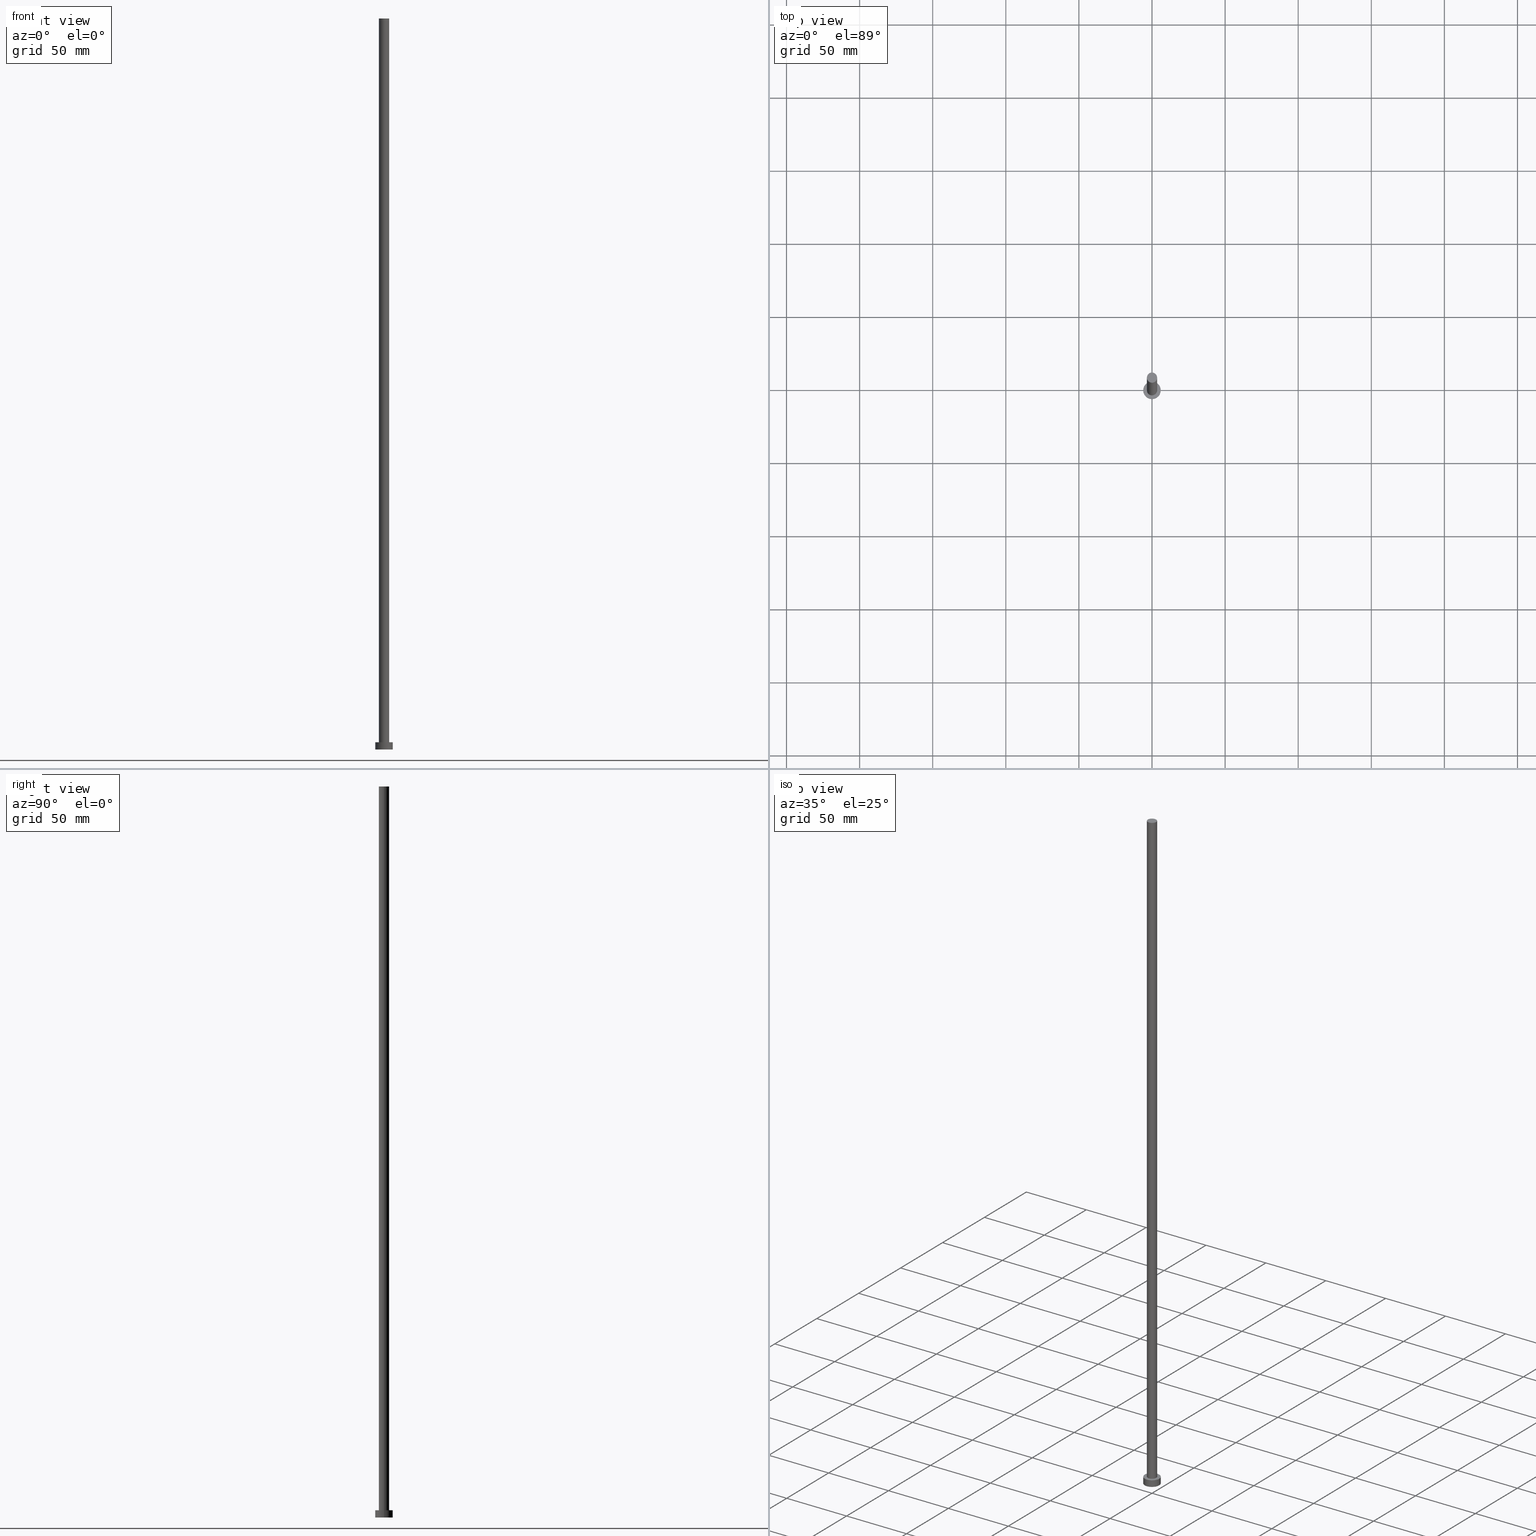
[diagram: canonical four-view strip — front | top / right | iso, engineering-drawing reading convention]
A machine part, canonical four-view strip (front | top / right | iso — engineering-drawing reading convention). The complete STEP part file that produces these views, byte-faithful:
ISO-10303-21;
HEADER;
FILE_DESCRIPTION (( 'STEP AP203' ),
    '1' );
FILE_NAME ('019a.STEP',
    '2023-02-13T13:35:35',
    ( '' ),
    ( '' ),
    'SwSTEP 2.0',
    'SolidWorks 2019',
    '' );
FILE_SCHEMA (( 'CONFIG_CONTROL_DESIGN' ));
ENDSEC;

DATA;
#1 = PERSON_AND_ORGANIZATION ( #200, #69 ) ;
#2 = APPLICATION_PROTOCOL_DEFINITION ( 'international standard', 'config_control_design', 1994, #146 ) ;
#3 = CC_DESIGN_PERSON_AND_ORGANIZATION_ASSIGNMENT ( #64, #21, ( #254 ) ) ;
#4 = ADVANCED_FACE ( 'NONE', ( #136 ), #212, .T. ) ;
#5 = PERSON_AND_ORGANIZATION ( #200, #69 ) ;
#6 = CALENDAR_DATE ( 2023, 13, 2 ) ;
#7 = SECURITY_CLASSIFICATION_LEVEL ( 'unclassified' ) ;
#8 = SHAPE_DEFINITION_REPRESENTATION ( #48, #220 ) ;
#9 = AXIS2_PLACEMENT_3D ( 'NONE', #173, #68, #39 ) ;
#10 = LINE ( 'NONE', #251, #80 ) ;
#11 = FACE_BOUND ( 'NONE', #175, .T. ) ;
#12 = VERTEX_POINT ( 'NONE', #189 ) ;
#13 = AXIS2_PLACEMENT_3D ( 'NONE', #180, #227, #253 ) ;
#14 = EDGE_LOOP ( 'NONE', ( #72, #247 ) ) ;
#15 = CYLINDRICAL_SURFACE ( 'NONE', #191, 3.500000000000000000 ) ;
#16 = DIRECTION ( 'NONE',  ( 0.000000000000000000, 0.000000000000000000, 1.000000000000000000 ) ) ;
#17 = FACE_OUTER_BOUND ( 'NONE', #154, .T. ) ;
#18 = AXIS2_PLACEMENT_3D ( 'NONE', #33, #231, #110 ) ;
#19 = DATE_TIME_ROLE ( 'creation_date' ) ;
#20 = EDGE_CURVE ( 'NONE', #209, #56, #10, .T. ) ;
#21 = PERSON_AND_ORGANIZATION_ROLE ( 'design_owner' ) ;
#22 = CARTESIAN_POINT ( 'NONE',  ( 6.000000000000000888, 7.347880794884120722E-16, 5.000000000000000000 ) ) ;
#23 = CC_DESIGN_DATE_AND_TIME_ASSIGNMENT ( #185, #147, ( #203 ) ) ;
#24 = EDGE_CURVE ( 'NONE', #56, #12, #252, .T. ) ;
#25 = ORIENTED_EDGE ( 'NONE', *, *, #153, .F. ) ;
#26 = COORDINATED_UNIVERSAL_TIME_OFFSET ( 1, 0, .AHEAD. ) ;
#27 = CIRCLE ( 'NONE', #135, 6.000000000000000888 ) ;
#28 = ORIENTED_EDGE ( 'NONE', *, *, #198, .F. ) ;
#29 = CARTESIAN_POINT ( 'NONE',  ( -3.500000000000000000, 0.000000000000000000, 500.0000000000000000 ) ) ;
#30 = EDGE_LOOP ( 'NONE', ( #205, #87, #58, #224 ) ) ;
#31 = DIRECTION ( 'NONE',  ( 0.000000000000000000, 0.000000000000000000, 1.000000000000000000 ) ) ;
#32 = PRODUCT_DEFINITION ( 'NEZN�M�', '', #221, #51 ) ;
#33 = CARTESIAN_POINT ( 'NONE',  ( 0.000000000000000000, 0.000000000000000000, 0.000000000000000000 ) ) ;
#34 = DIRECTION ( 'NONE',  ( 0.000000000000000000, 0.000000000000000000, 1.000000000000000000 ) ) ;
#35 =( GEOMETRIC_REPRESENTATION_CONTEXT ( 3 ) GLOBAL_UNCERTAINTY_ASSIGNED_CONTEXT ( ( #79 ) ) GLOBAL_UNIT_ASSIGNED_CONTEXT ( ( #115, #76, #195 ) ) REPRESENTATION_CONTEXT ( 'NONE', 'WORKASPACE' ) );
#36 = VERTEX_POINT ( 'NONE', #98 ) ;
#37 = CARTESIAN_POINT ( 'NONE',  ( 3.500000000000000000, 4.286263797015736595E-16, 500.0000000000000000 ) ) ;
#38 = CARTESIAN_POINT ( 'NONE',  ( 0.000000000000000000, 0.000000000000000000, 5.000000000000000000 ) ) ;
#39 = DIRECTION ( 'NONE',  ( 1.000000000000000000, 0.000000000000000000, 0.000000000000000000 ) ) ;
#40 = CARTESIAN_POINT ( 'NONE',  ( 6.000000000000000888, 7.347880794884120722E-16, 5.000000000000000000 ) ) ;
#41 = AXIS2_PLACEMENT_3D ( 'NONE', #131, #194, #63 ) ;
#42 = APPLICATION_CONTEXT ( 'configuration controlled 3d designs of mechanical parts and assemblies' ) ;
#43 = ADVANCED_FACE ( 'NONE', ( #235 ), #62, .T. ) ;
#44 = ORIENTED_EDGE ( 'NONE', *, *, #97, .T. ) ;
#45 = PERSON_AND_ORGANIZATION ( #200, #69 ) ;
#46 = LOCAL_TIME ( 14, 35, 35.00000000000000000, #138 ) ;
#47 = CIRCLE ( 'NONE', #9, 6.000000000000000888 ) ;
#48 = PRODUCT_DEFINITION_SHAPE ( 'NONE', 'NONE',  #32 ) ;
#49 = PERSON_AND_ORGANIZATION_ROLE ( 'classification_officer' ) ;
#50 = ADVANCED_FACE ( 'NONE', ( #174 ), #232, .F. ) ;
#51 = DESIGN_CONTEXT ( 'detailed design', #146, 'design' ) ;
#52 = MANIFOLD_SOLID_BREP ( 'P�idat vysunut�m3', #125 ) ;
#53 = VERTEX_POINT ( 'NONE', #113 ) ;
#54 = AXIS2_PLACEMENT_3D ( 'NONE', #214, #34, #94 ) ;
#55 = DIRECTION ( 'NONE',  ( 0.000000000000000000, 0.000000000000000000, 1.000000000000000000 ) ) ;
#56 = VERTEX_POINT ( 'NONE', #117 ) ;
#57 = DIRECTION ( 'NONE',  ( 1.000000000000000000, 0.000000000000000000, 0.000000000000000000 ) ) ;
#58 = ORIENTED_EDGE ( 'NONE', *, *, #226, .T. ) ;
#59 = LINE ( 'NONE', #170, #88 ) ;
#60 = VECTOR ( 'NONE', #130, 1000.000000000000000 ) ;
#61 = ORIENTED_EDGE ( 'NONE', *, *, #144, .T. ) ;
#62 = PLANE ( 'NONE',  #54 ) ;
#63 = DIRECTION ( 'NONE',  ( -1.000000000000000000, 0.000000000000000000, 0.000000000000000000 ) ) ;
#64 = PERSON_AND_ORGANIZATION ( #200, #69 ) ;
#65 = CIRCLE ( 'NONE', #18, 6.000000000000000888 ) ;
#66 = PERSON_AND_ORGANIZATION_ROLE ( 'creator' ) ;
#67 = ORIENTED_EDGE ( 'NONE', *, *, #182, .T. ) ;
#68 = DIRECTION ( 'NONE',  ( 0.000000000000000000, 0.000000000000000000, 1.000000000000000000 ) ) ;
#69 = ORGANIZATION ( 'NEUR�EN�', 'NEUR�EN�', '' ) ;
#70 = ORIENTED_EDGE ( 'NONE', *, *, #226, .F. ) ;
#71 = DIRECTION ( 'NONE',  ( 1.000000000000000000, 0.000000000000000000, 0.000000000000000000 ) ) ;
#72 = ORIENTED_EDGE ( 'NONE', *, *, #121, .T. ) ;
#73 = EDGE_LOOP ( 'NONE', ( #93, #28, #106, #95 ) ) ;
#74 = CC_DESIGN_DATE_AND_TIME_ASSIGNMENT ( #217, #19, ( #32 ) ) ;
#75 = CARTESIAN_POINT ( 'NONE',  ( 0.000000000000000000, 0.000000000000000000, 5.000000000000000000 ) ) ;
#76 =( NAMED_UNIT ( * ) PLANE_ANGLE_UNIT ( ) SI_UNIT ( $, .RADIAN. ) );
#77 = CARTESIAN_POINT ( 'NONE',  ( -6.000000000000000888, 0.000000000000000000, 5.000000000000000000 ) ) ;
#78 = APPROVAL_ROLE ( '' ) ;
#79 = UNCERTAINTY_MEASURE_WITH_UNIT (LENGTH_MEASURE( 1.000000000000000082E-05 ), #115, 'distance_accuracy_value', 'NONE');
#80 = VECTOR ( 'NONE', #176, 1000.000000000000000 ) ;
#81 = CALENDAR_DATE ( 2023, 13, 2 ) ;
#82 = APPROVAL_DATE_TIME ( #237, #201 ) ;
#83 = APPROVAL_ROLE ( '' ) ;
#84 = DATE_AND_TIME ( #6, #250 ) ;
#85 = CC_DESIGN_PERSON_AND_ORGANIZATION_ASSIGNMENT ( #168, #164, ( #221 ) ) ;
#86 = EDGE_CURVE ( 'NONE', #241, #12, #59, .T. ) ;
#87 = ORIENTED_EDGE ( 'NONE', *, *, #86, .T. ) ;
#88 = VECTOR ( 'NONE', #210, 1000.000000000000000 ) ;
#89 = CARTESIAN_POINT ( 'NONE',  ( 0.000000000000000000, 0.000000000000000000, 500.0000000000000000 ) ) ;
#90 = APPROVAL ( #219, 'NEUR�EN�' ) ;
#91 = ORIENTED_EDGE ( 'NONE', *, *, #121, .F. ) ;
#92 = CARTESIAN_POINT ( 'NONE',  ( 0.000000000000000000, 0.000000000000000000, 0.000000000000000000 ) ) ;
#93 = ORIENTED_EDGE ( 'NONE', *, *, #144, .F. ) ;
#94 = DIRECTION ( 'NONE',  ( 1.000000000000000000, 0.000000000000000000, -0.000000000000000000 ) ) ;
#95 = ORIENTED_EDGE ( 'NONE', *, *, #153, .T. ) ;
#96 = DIRECTION ( 'NONE',  ( 1.000000000000000000, 0.000000000000000000, 0.000000000000000000 ) ) ;
#97 = EDGE_CURVE ( 'NONE', #149, #225, #27, .T. ) ;
#98 = CARTESIAN_POINT ( 'NONE',  ( 6.000000000000000888, 7.347880794884120722E-16, 0.000000000000000000 ) ) ;
#99 = FACE_OUTER_BOUND ( 'NONE', #30, .T. ) ;
#100 = CYLINDRICAL_SURFACE ( 'NONE', #13, 3.500000000000000000 ) ;
#101 = PERSON_AND_ORGANIZATION ( #200, #69 ) ;
#102 = DIRECTION ( 'NONE',  ( 0.000000000000000000, 0.000000000000000000, 1.000000000000000000 ) ) ;
#103 = APPROVAL ( #223, 'NEUR�EN�' ) ;
#104 = CC_DESIGN_PERSON_AND_ORGANIZATION_ASSIGNMENT ( #1, #66, ( #32 ) ) ;
#105 = PERSON_AND_ORGANIZATION ( #200, #69 ) ;
#106 = ORIENTED_EDGE ( 'NONE', *, *, #140, .T. ) ;
#107 = LOCAL_TIME ( 14, 35, 35.00000000000000000, #26 ) ;
#108 = AXIS2_PLACEMENT_3D ( 'NONE', #92, #190, #71 ) ;
#109 = DIRECTION ( 'NONE',  ( -1.000000000000000000, 0.000000000000000000, 0.000000000000000000 ) ) ;
#110 = DIRECTION ( 'NONE',  ( 1.000000000000000000, 0.000000000000000000, 0.000000000000000000 ) ) ;
#111 = ORIENTED_EDGE ( 'NONE', *, *, #140, .F. ) ;
#112 = APPROVAL_PERSON_ORGANIZATION ( #242, #103, #83 ) ;
#113 = CARTESIAN_POINT ( 'NONE',  ( -6.000000000000000888, 0.000000000000000000, 0.000000000000000000 ) ) ;
#114 = ADVANCED_FACE ( 'NONE', ( #245 ), #196, .T. ) ;
#115 =( LENGTH_UNIT ( ) NAMED_UNIT ( * ) SI_UNIT ( .MILLI., .METRE. ) );
#116 = CARTESIAN_POINT ( 'NONE',  ( 0.000000000000000000, 0.000000000000000000, 5.000000000000000000 ) ) ;
#117 = CARTESIAN_POINT ( 'NONE',  ( -3.500000000000000000, 0.000000000000000000, 5.000000000000000000 ) ) ;
#118 = COORDINATED_UNIVERSAL_TIME_OFFSET ( 1, 0, .AHEAD. ) ;
#119 = CARTESIAN_POINT ( 'NONE',  ( 0.000000000000000000, 0.000000000000000000, 500.0000000000000000 ) ) ;
#120 = APPLICATION_PROTOCOL_DEFINITION ( 'international standard', 'config_control_design', 1994, #42 ) ;
#121 = EDGE_CURVE ( 'NONE', #209, #241, #167, .T. ) ;
#122 = ADVANCED_FACE ( 'NONE', ( #17 ), #100, .T. ) ;
#123 = PERSON_AND_ORGANIZATION_ROLE ( 'creator' ) ;
#124 = DATE_AND_TIME ( #239, #107 ) ;
#125 = CLOSED_SHELL ( 'NONE', ( #163, #114, #4, #202, #50, #122, #43 ) ) ;
#126 = COORDINATED_UNIVERSAL_TIME_OFFSET ( 1, 0, .AHEAD. ) ;
#127 = DIRECTION ( 'NONE',  ( -0.000000000000000000, -0.000000000000000000, -1.000000000000000000 ) ) ;
#128 = ORIENTED_EDGE ( 'NONE', *, *, #97, .F. ) ;
#129 = DIRECTION ( 'NONE',  ( 0.000000000000000000, 0.000000000000000000, 1.000000000000000000 ) ) ;
#130 = DIRECTION ( 'NONE',  ( -0.000000000000000000, -0.000000000000000000, -1.000000000000000000 ) ) ;
#131 = CARTESIAN_POINT ( 'NONE',  ( 0.000000000000000000, 0.000000000000000000, 5.000000000000000000 ) ) ;
#132 = EDGE_LOOP ( 'NONE', ( #25, #150 ) ) ;
#133 = CARTESIAN_POINT ( 'NONE',  ( 0.000000000000000000, 0.000000000000000000, 5.000000000000000000 ) ) ;
#134 = AXIS2_PLACEMENT_3D ( 'NONE', #181, #102, #162 ) ;
#135 = AXIS2_PLACEMENT_3D ( 'NONE', #38, #193, #96 ) ;
#136 = FACE_OUTER_BOUND ( 'NONE', #73, .T. ) ;
#137 = DIRECTION ( 'NONE',  ( 0.000000000000000000, 0.000000000000000000, 1.000000000000000000 ) ) ;
#138 = COORDINATED_UNIVERSAL_TIME_OFFSET ( 1, 0, .AHEAD. ) ;
#139 = DIRECTION ( 'NONE',  ( -0.000000000000000000, -0.000000000000000000, -1.000000000000000000 ) ) ;
#140 = EDGE_CURVE ( 'NONE', #225, #53, #229, .T. ) ;
#141 = CALENDAR_DATE ( 2023, 13, 2 ) ;
#142 = AXIS2_PLACEMENT_3D ( 'NONE', #248, #31, #172 ) ;
#143 = CC_DESIGN_APPROVAL ( #103, ( #203 ) ) ;
#144 = EDGE_CURVE ( 'NONE', #149, #36, #236, .T. ) ;
#145 = EDGE_CURVE ( 'NONE', #241, #209, #157, .T. ) ;
#146 = APPLICATION_CONTEXT ( 'configuration controlled 3d designs of mechanical parts and assemblies' ) ;
#147 = DATE_TIME_ROLE ( 'classification_date' ) ;
#148 = EDGE_LOOP ( 'NONE', ( #151, #44 ) ) ;
#149 = VERTEX_POINT ( 'NONE', #22 ) ;
#150 = ORIENTED_EDGE ( 'NONE', *, *, #182, .F. ) ;
#151 = ORIENTED_EDGE ( 'NONE', *, *, #198, .T. ) ;
#152 = PLANE ( 'NONE',  #199 ) ;
#153 = EDGE_CURVE ( 'NONE', #53, #36, #65, .T. ) ;
#154 = EDGE_LOOP ( 'NONE', ( #243, #91, #244, #249 ) ) ;
#155 = CARTESIAN_POINT ( 'NONE',  ( -6.000000000000000888, 0.000000000000000000, 5.000000000000000000 ) ) ;
#156 = CC_DESIGN_APPROVAL ( #201, ( #32 ) ) ;
#157 = CIRCLE ( 'NONE', #179, 3.500000000000000000 ) ;
#158 = DIRECTION ( 'NONE',  ( 1.000000000000000000, 0.000000000000000000, 0.000000000000000000 ) ) ;
#159 = CARTESIAN_POINT ( 'NONE',  ( 0.000000000000000000, 0.000000000000000000, 500.0000000000000000 ) ) ;
#160 = APPROVAL_ROLE ( '' ) ;
#161 = VECTOR ( 'NONE', #139, 1000.000000000000000 ) ;
#162 = DIRECTION ( 'NONE',  ( 1.000000000000000000, 0.000000000000000000, 0.000000000000000000 ) ) ;
#163 = ADVANCED_FACE ( 'NONE', ( #99 ), #15, .T. ) ;
#164 = PERSON_AND_ORGANIZATION_ROLE ( 'design_supplier' ) ;
#165 = CIRCLE ( 'NONE', #142, 3.500000000000000000 ) ;
#166 = CALENDAR_DATE ( 2023, 13, 2 ) ;
#167 = CIRCLE ( 'NONE', #204, 3.500000000000000000 ) ;
#168 = PERSON_AND_ORGANIZATION ( #200, #69 ) ;
#169 = DIRECTION ( 'NONE',  ( 1.000000000000000000, 0.000000000000000000, 0.000000000000000000 ) ) ;
#170 = CARTESIAN_POINT ( 'NONE',  ( 3.500000000000000000, 4.286263797015736595E-16, 500.0000000000000000 ) ) ;
#171 = CIRCLE ( 'NONE', #108, 6.000000000000000888 ) ;
#172 = DIRECTION ( 'NONE',  ( 1.000000000000000000, 0.000000000000000000, 0.000000000000000000 ) ) ;
#173 = CARTESIAN_POINT ( 'NONE',  ( 0.000000000000000000, 0.000000000000000000, 5.000000000000000000 ) ) ;
#174 = FACE_OUTER_BOUND ( 'NONE', #132, .T. ) ;
#175 = EDGE_LOOP ( 'NONE', ( #234, #70 ) ) ;
#176 = DIRECTION ( 'NONE',  ( -0.000000000000000000, -0.000000000000000000, -1.000000000000000000 ) ) ;
#177 = FACE_OUTER_BOUND ( 'NONE', #148, .T. ) ;
#178 = LOCAL_TIME ( 14, 35, 35.00000000000000000, #187 ) ;
#179 = AXIS2_PLACEMENT_3D ( 'NONE', #119, #208, #169 ) ;
#180 = CARTESIAN_POINT ( 'NONE',  ( 0.000000000000000000, 0.000000000000000000, 500.0000000000000000 ) ) ;
#181 = CARTESIAN_POINT ( 'NONE',  ( 0.000000000000000000, 0.000000000000000000, 0.000000000000000000 ) ) ;
#182 = EDGE_CURVE ( 'NONE', #36, #53, #171, .T. ) ;
#183 = CC_DESIGN_APPROVAL ( #90, ( #221 ) ) ;
#184 = APPROVAL_DATE_TIME ( #84, #103 ) ;
#185 = DATE_AND_TIME ( #166, #178 ) ;
#186 = APPROVAL_DATE_TIME ( #124, #90 ) ;
#187 = COORDINATED_UNIVERSAL_TIME_OFFSET ( 1, 0, .AHEAD. ) ;
#188 = CC_DESIGN_PERSON_AND_ORGANIZATION_ASSIGNMENT ( #105, #49, ( #203 ) ) ;
#189 = CARTESIAN_POINT ( 'NONE',  ( 3.500000000000000000, 4.286263797015736595E-16, 5.000000000000000000 ) ) ;
#190 = DIRECTION ( 'NONE',  ( 0.000000000000000000, 0.000000000000000000, 1.000000000000000000 ) ) ;
#191 = AXIS2_PLACEMENT_3D ( 'NONE', #89, #228, #192 ) ;
#192 = DIRECTION ( 'NONE',  ( -1.000000000000000000, 0.000000000000000000, 0.000000000000000000 ) ) ;
#193 = DIRECTION ( 'NONE',  ( 0.000000000000000000, 0.000000000000000000, 1.000000000000000000 ) ) ;
#194 = DIRECTION ( 'NONE',  ( -0.000000000000000000, -0.000000000000000000, -1.000000000000000000 ) ) ;
#195 =( NAMED_UNIT ( * ) SI_UNIT ( $, .STERADIAN. ) SOLID_ANGLE_UNIT ( ) );
#196 = CYLINDRICAL_SURFACE ( 'NONE', #41, 6.000000000000000888 ) ;
#197 = AXIS2_PLACEMENT_3D ( 'NONE', #246, #55, #213 ) ;
#198 = EDGE_CURVE ( 'NONE', #225, #149, #47, .T. ) ;
#199 = AXIS2_PLACEMENT_3D ( 'NONE', #133, #129, #206 ) ;
#200 = PERSON ( 'NEUR�EN�', 'NEUR�EN�', 'NEUR�EN�', ('NEUR�EN�'), ('NEUR�EN�'), ('NEUR�EN�') ) ;
#201 = APPROVAL ( #255, 'NEUR�EN�' ) ;
#202 = ADVANCED_FACE ( 'NONE', ( #11, #177 ), #152, .T. ) ;
#203 = SECURITY_CLASSIFICATION ( '', '', #7 ) ;
#204 = AXIS2_PLACEMENT_3D ( 'NONE', #159, #16, #57 ) ;
#205 = ORIENTED_EDGE ( 'NONE', *, *, #145, .F. ) ;
#206 = DIRECTION ( 'NONE',  ( 1.000000000000000000, 0.000000000000000000, -0.000000000000000000 ) ) ;
#207 = PRODUCT_RELATED_PRODUCT_CATEGORY ( 'detail', '', ( #254 ) ) ;
#208 = DIRECTION ( 'NONE',  ( 0.000000000000000000, 0.000000000000000000, 1.000000000000000000 ) ) ;
#209 = VERTEX_POINT ( 'NONE', #29 ) ;
#210 = DIRECTION ( 'NONE',  ( -0.000000000000000000, -0.000000000000000000, -1.000000000000000000 ) ) ;
#211 = CC_DESIGN_PERSON_AND_ORGANIZATION_ASSIGNMENT ( #45, #123, ( #221 ) ) ;
#212 = CYLINDRICAL_SURFACE ( 'NONE', #218, 6.000000000000000888 ) ;
#213 = DIRECTION ( 'NONE',  ( 1.000000000000000000, 0.000000000000000000, -0.000000000000000000 ) ) ;
#214 = CARTESIAN_POINT ( 'NONE',  ( 0.000000000000000000, 0.000000000000000000, 500.0000000000000000 ) ) ;
#215 = MECHANICAL_CONTEXT ( 'NONE', #42, 'mechanical' ) ;
#216 = CC_DESIGN_SECURITY_CLASSIFICATION ( #203, ( #221 ) ) ;
#217 = DATE_AND_TIME ( #141, #222 ) ;
#218 = AXIS2_PLACEMENT_3D ( 'NONE', #116, #127, #109 ) ;
#219 = APPROVAL_STATUS ( 'not_yet_approved' ) ;
#220 = ADVANCED_BREP_SHAPE_REPRESENTATION ( '019a', ( #52, #134 ), #35 ) ;
#221 = PRODUCT_DEFINITION_FORMATION_WITH_SPECIFIED_SOURCE ( 'LIBOVOLN�', '', #254, .NOT_KNOWN. ) ;
#222 = LOCAL_TIME ( 14, 35, 35.00000000000000000, #118 ) ;
#223 = APPROVAL_STATUS ( 'not_yet_approved' ) ;
#224 = ORIENTED_EDGE ( 'NONE', *, *, #20, .F. ) ;
#225 = VERTEX_POINT ( 'NONE', #155 ) ;
#226 = EDGE_CURVE ( 'NONE', #12, #56, #165, .T. ) ;
#227 = DIRECTION ( 'NONE',  ( -0.000000000000000000, -0.000000000000000000, -1.000000000000000000 ) ) ;
#228 = DIRECTION ( 'NONE',  ( -0.000000000000000000, -0.000000000000000000, -1.000000000000000000 ) ) ;
#229 = LINE ( 'NONE', #77, #161 ) ;
#230 = EDGE_LOOP ( 'NONE', ( #128, #61, #67, #111 ) ) ;
#231 = DIRECTION ( 'NONE',  ( 0.000000000000000000, 0.000000000000000000, 1.000000000000000000 ) ) ;
#232 = PLANE ( 'NONE',  #197 ) ;
#233 = APPROVAL_PERSON_ORGANIZATION ( #5, #201, #78 ) ;
#234 = ORIENTED_EDGE ( 'NONE', *, *, #24, .F. ) ;
#235 = FACE_OUTER_BOUND ( 'NONE', #14, .T. ) ;
#236 = LINE ( 'NONE', #40, #60 ) ;
#237 = DATE_AND_TIME ( #81, #46 ) ;
#238 = APPROVAL_PERSON_ORGANIZATION ( #101, #90, #160 ) ;
#239 = CALENDAR_DATE ( 2023, 13, 2 ) ;
#240 = AXIS2_PLACEMENT_3D ( 'NONE', #75, #137, #158 ) ;
#241 = VERTEX_POINT ( 'NONE', #37 ) ;
#242 = PERSON_AND_ORGANIZATION ( #200, #69 ) ;
#243 = ORIENTED_EDGE ( 'NONE', *, *, #86, .F. ) ;
#244 = ORIENTED_EDGE ( 'NONE', *, *, #20, .T. ) ;
#245 = FACE_OUTER_BOUND ( 'NONE', #230, .T. ) ;
#246 = CARTESIAN_POINT ( 'NONE',  ( 0.000000000000000000, 0.000000000000000000, 0.000000000000000000 ) ) ;
#247 = ORIENTED_EDGE ( 'NONE', *, *, #145, .T. ) ;
#248 = CARTESIAN_POINT ( 'NONE',  ( 0.000000000000000000, 0.000000000000000000, 5.000000000000000000 ) ) ;
#249 = ORIENTED_EDGE ( 'NONE', *, *, #24, .T. ) ;
#250 = LOCAL_TIME ( 14, 35, 35.00000000000000000, #126 ) ;
#251 = CARTESIAN_POINT ( 'NONE',  ( -3.500000000000000000, 0.000000000000000000, 500.0000000000000000 ) ) ;
#252 = CIRCLE ( 'NONE', #240, 3.500000000000000000 ) ;
#253 = DIRECTION ( 'NONE',  ( -1.000000000000000000, 0.000000000000000000, 0.000000000000000000 ) ) ;
#254 = PRODUCT ( '019a', '019a', '', ( #215 ) ) ;
#255 = APPROVAL_STATUS ( 'not_yet_approved' ) ;
ENDSEC;
END-ISO-10303-21;
